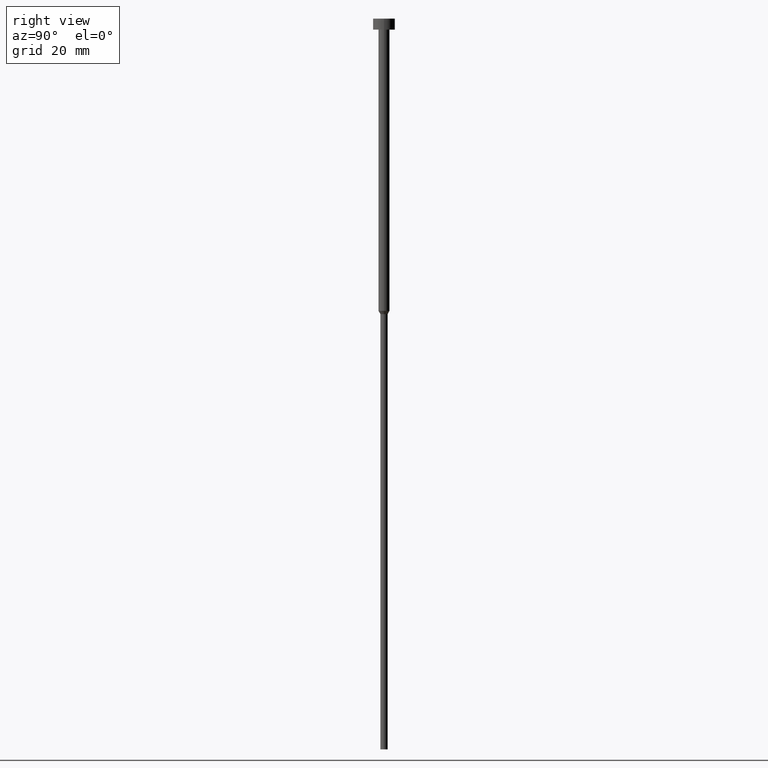
[diagram: clean part render]
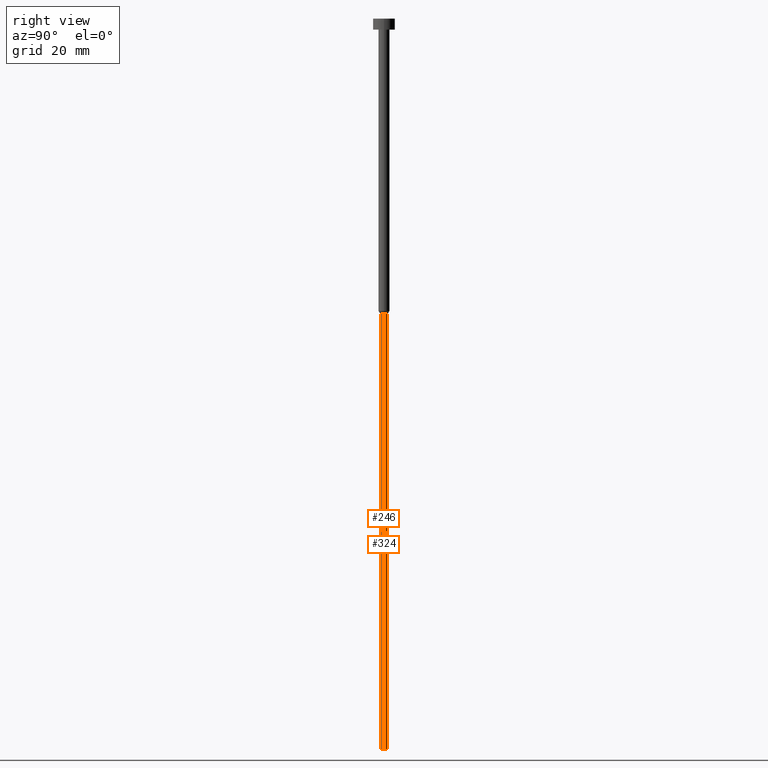
[diagram: same view with one multi-face feature highlighted, each face labeled with its STEP entity id]
A machine part, right view. The highlighted faces form ONE feature: a constant-radius fillet chain: 2 tangent blend faces with common blend radius 1 mm. The faces share edges in the B-rep.
Their STEP definitions:
[1] entity #246 (Cylinder):
#19 = CARTESIAN_POINT ( 'NONE',  ( 0.000000000000000000, 0.000000000000000000, 0.000000000000000000 ) ) ;
#21 = CARTESIAN_POINT ( 'NONE',  ( 1.000000000000000000, 0.000000000000000000, 0.000000000000000000 ) ) ;
#42 = CARTESIAN_POINT ( 'NONE',  ( 1.000000000000000000, 0.000000000000000000, -80.86602540378444814 ) ) ;
#54 = DIRECTION ( 'NONE',  ( -0.000000000000000000, -0.000000000000000000, 1.000000000000000000 ) ) ;
#56 = DIRECTION ( 'NONE',  ( -0.000000000000000000, -0.000000000000000000, 1.000000000000000000 ) ) ;
#62 = ORIENTED_EDGE ( 'NONE', *, *, #158, .T. ) ;
#69 = LINE ( 'NONE', #21, #151 ) ;
#72 = FACE_OUTER_BOUND ( 'NONE', #111, .T. ) ;
#81 = VERTEX_POINT ( 'NONE', #311 ) ;
#86 = AXIS2_PLACEMENT_3D ( 'NONE', #138, #54, #291 ) ;
#90 = VERTEX_POINT ( 'NONE', #42 ) ;
#100 = CARTESIAN_POINT ( 'NONE',  ( 1.000000000000000000, 0.000000000000000000, -200.0000000000000000 ) ) ;
#101 = EDGE_CURVE ( 'NONE', #341, #202, #206, .T. ) ;
#111 = EDGE_LOOP ( 'NONE', ( #257, #222, #62, #333 ) ) ;
#114 = DIRECTION ( 'NONE',  ( 1.000000000000000000, 0.000000000000000000, 0.000000000000000000 ) ) ;
#120 = CARTESIAN_POINT ( 'NONE',  ( -1.000000000000000000, 1.224646799147353207E-16, 0.000000000000000000 ) ) ;
#130 = DIRECTION ( 'NONE',  ( 1.000000000000000000, 0.000000000000000000, 0.000000000000000000 ) ) ;
#138 = CARTESIAN_POINT ( 'NONE',  ( 0.000000000000000000, 0.000000000000000000, -200.0000000000000000 ) ) ;
#151 = VECTOR ( 'NONE', #228, 1000.000000000000000 ) ;
#158 = EDGE_CURVE ( 'NONE', #202, #90, #69, .T. ) ;
#160 = DIRECTION ( 'NONE',  ( -0.000000000000000000, -0.000000000000000000, 1.000000000000000000 ) ) ;
#189 = VECTOR ( 'NONE', #56, 1000.000000000000000 ) ;
#202 = VERTEX_POINT ( 'NONE', #100 ) ;
#206 = CIRCLE ( 'NONE', #86, 1.000000000000000000 ) ;
#222 = ORIENTED_EDGE ( 'NONE', *, *, #101, .T. ) ;
#228 = DIRECTION ( 'NONE',  ( -0.000000000000000000, -0.000000000000000000, 1.000000000000000000 ) ) ;
#239 = CIRCLE ( 'NONE', #284, 1.000000000000000000 ) ;
#246 = ADVANCED_FACE ( 'NONE', ( #72 ), #348, .T. ) ;
#257 = ORIENTED_EDGE ( 'NONE', *, *, #312, .F. ) ;
#265 = CARTESIAN_POINT ( 'NONE',  ( -1.000000000000000000, 1.224646799147353207E-16, -200.0000000000000000 ) ) ;
#284 = AXIS2_PLACEMENT_3D ( 'NONE', #353, #332, #114 ) ;
#288 = LINE ( 'NONE', #120, #189 ) ;
#291 = DIRECTION ( 'NONE',  ( 1.000000000000000000, 0.000000000000000000, 0.000000000000000000 ) ) ;
#311 = CARTESIAN_POINT ( 'NONE',  ( -1.000000000000000000, 1.224646799147353207E-16, -80.86602540378444814 ) ) ;
#312 = EDGE_CURVE ( 'NONE', #341, #81, #288, .T. ) ;
#329 = AXIS2_PLACEMENT_3D ( 'NONE', #19, #160, #130 ) ;
#332 = DIRECTION ( 'NONE',  ( -0.000000000000000000, -0.000000000000000000, 1.000000000000000000 ) ) ;
#333 = ORIENTED_EDGE ( 'NONE', *, *, #334, .F. ) ;
#334 = EDGE_CURVE ( 'NONE', #81, #90, #239, .T. ) ;
#341 = VERTEX_POINT ( 'NONE', #265 ) ;
#348 = CYLINDRICAL_SURFACE ( 'NONE', #329, 1.000000000000000000 ) ;
#353 = CARTESIAN_POINT ( 'NONE',  ( 0.000000000000000000, 0.000000000000000000, -80.86602540378444814 ) ) ;
[2] entity #324 (Cylinder):
#21 = CARTESIAN_POINT ( 'NONE',  ( 1.000000000000000000, 0.000000000000000000, 0.000000000000000000 ) ) ;
#28 = FACE_OUTER_BOUND ( 'NONE', #179, .T. ) ;
#42 = CARTESIAN_POINT ( 'NONE',  ( 1.000000000000000000, 0.000000000000000000, -80.86602540378444814 ) ) ;
#56 = DIRECTION ( 'NONE',  ( -0.000000000000000000, -0.000000000000000000, 1.000000000000000000 ) ) ;
#69 = LINE ( 'NONE', #21, #151 ) ;
#70 = AXIS2_PLACEMENT_3D ( 'NONE', #88, #331, #283 ) ;
#77 = DIRECTION ( 'NONE',  ( -0.000000000000000000, -0.000000000000000000, 1.000000000000000000 ) ) ;
#81 = VERTEX_POINT ( 'NONE', #311 ) ;
#88 = CARTESIAN_POINT ( 'NONE',  ( 0.000000000000000000, 0.000000000000000000, 0.000000000000000000 ) ) ;
#90 = VERTEX_POINT ( 'NONE', #42 ) ;
#100 = CARTESIAN_POINT ( 'NONE',  ( 1.000000000000000000, 0.000000000000000000, -200.0000000000000000 ) ) ;
#109 = EDGE_CURVE ( 'NONE', #90, #81, #273, .T. ) ;
#110 = DIRECTION ( 'NONE',  ( 1.000000000000000000, 0.000000000000000000, 0.000000000000000000 ) ) ;
#120 = CARTESIAN_POINT ( 'NONE',  ( -1.000000000000000000, 1.224646799147353207E-16, 0.000000000000000000 ) ) ;
#135 = EDGE_CURVE ( 'NONE', #202, #341, #335, .T. ) ;
#151 = VECTOR ( 'NONE', #228, 1000.000000000000000 ) ;
#158 = EDGE_CURVE ( 'NONE', #202, #90, #69, .T. ) ;
#161 = CARTESIAN_POINT ( 'NONE',  ( 0.000000000000000000, 0.000000000000000000, -80.86602540378444814 ) ) ;
#179 = EDGE_LOOP ( 'NONE', ( #191, #230, #268, #183 ) ) ;
#183 = ORIENTED_EDGE ( 'NONE', *, *, #158, .F. ) ;
#189 = VECTOR ( 'NONE', #56, 1000.000000000000000 ) ;
#191 = ORIENTED_EDGE ( 'NONE', *, *, #135, .T. ) ;
#202 = VERTEX_POINT ( 'NONE', #100 ) ;
#228 = DIRECTION ( 'NONE',  ( -0.000000000000000000, -0.000000000000000000, 1.000000000000000000 ) ) ;
#230 = ORIENTED_EDGE ( 'NONE', *, *, #312, .T. ) ;
#235 = AXIS2_PLACEMENT_3D ( 'NONE', #161, #77, #349 ) ;
#252 = AXIS2_PLACEMENT_3D ( 'NONE', #323, #344, #110 ) ;
#265 = CARTESIAN_POINT ( 'NONE',  ( -1.000000000000000000, 1.224646799147353207E-16, -200.0000000000000000 ) ) ;
#268 = ORIENTED_EDGE ( 'NONE', *, *, #109, .F. ) ;
#273 = CIRCLE ( 'NONE', #235, 1.000000000000000000 ) ;
#283 = DIRECTION ( 'NONE',  ( 1.000000000000000000, 0.000000000000000000, 0.000000000000000000 ) ) ;
#288 = LINE ( 'NONE', #120, #189 ) ;
#311 = CARTESIAN_POINT ( 'NONE',  ( -1.000000000000000000, 1.224646799147353207E-16, -80.86602540378444814 ) ) ;
#312 = EDGE_CURVE ( 'NONE', #341, #81, #288, .T. ) ;
#313 = CYLINDRICAL_SURFACE ( 'NONE', #70, 1.000000000000000000 ) ;
#323 = CARTESIAN_POINT ( 'NONE',  ( 0.000000000000000000, 0.000000000000000000, -200.0000000000000000 ) ) ;
#324 = ADVANCED_FACE ( 'NONE', ( #28 ), #313, .T. ) ;
#331 = DIRECTION ( 'NONE',  ( -0.000000000000000000, -0.000000000000000000, 1.000000000000000000 ) ) ;
#335 = CIRCLE ( 'NONE', #252, 1.000000000000000000 ) ;
#341 = VERTEX_POINT ( 'NONE', #265 ) ;
#344 = DIRECTION ( 'NONE',  ( -0.000000000000000000, -0.000000000000000000, 1.000000000000000000 ) ) ;
#349 = DIRECTION ( 'NONE',  ( 1.000000000000000000, 0.000000000000000000, 0.000000000000000000 ) ) ;